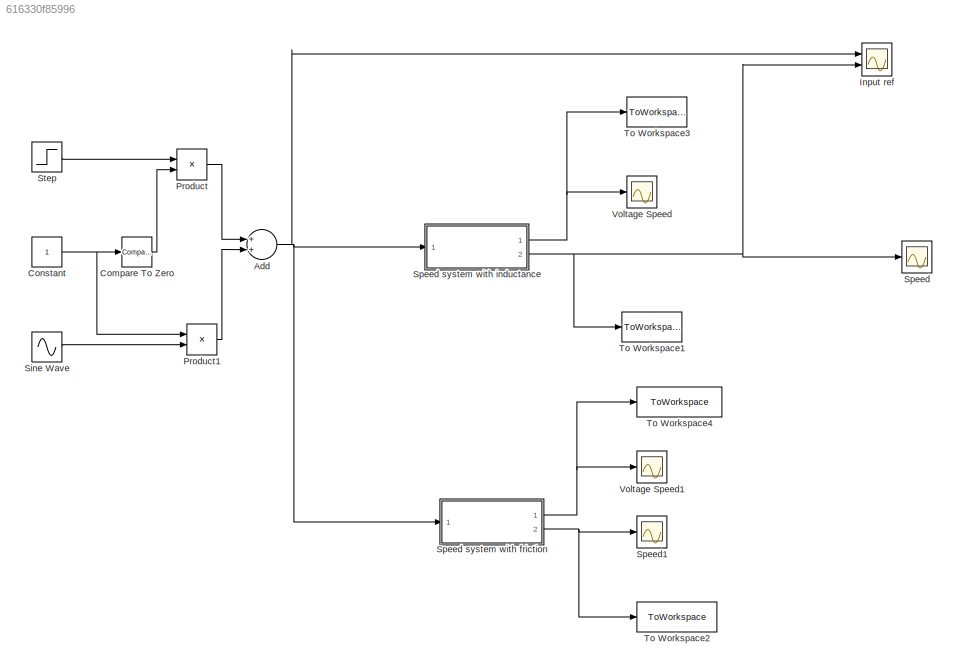
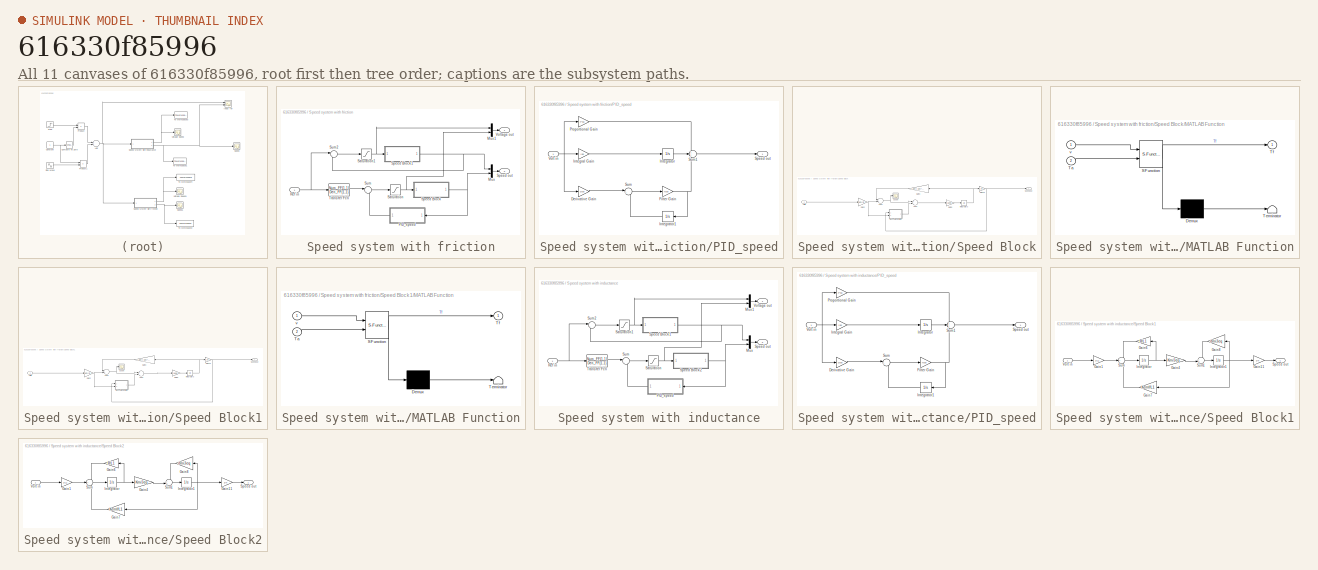
[diagram: thumbnail index - all 11 canvases of the model, root first then tree order]
MODEL slx_616330f85996
KIND model
CONFIG AbsTol = auto
CONFIG FixedStep = auto
CONFIG MaxStep = auto
CONFIG MinStep = auto
CONFIG RelTol = 1e-3
CONFIG SampleTimeConstraint = Unconstrained
CONFIG Solver = ode45
CONFIG SolverMode = SingleTasking
CONFIG SolverName = ode45
CONFIG StartTime = 0.0
CONFIG StopTime = time
BLOCK [Sum] Add
  InputSameDT = off
  OutDataTypeStr = Inherit: Inherit via internal rule
  Ports = [2, 1]
  SaturateOnIntegerOverflow = off
BLOCK [Reference] Compare To Zero  REF=simulink/Logic and Bit
Operations/Compare
To Zero
  Ports = [1, 1]
  SourceBlock = simulink/Logic and Bit\nOperations/Compare\nTo Zero
  SourceType = Compare To Zero
BLOCK [Constant] Constant
BLOCK [Scope] Input ref
  NumInputPorts = 2
  Ports = [2]
  ScopeSpecificationString = Simulink.scopes.TimeScopeBlockCfg('CurrentConfiguration', extmgr.ConfigurationSet(extmgr.Configuration('Core','General UI',true),extmgr.Configuration('Core','Source UI',true),extmgr.Configuration('Sources','WiredSimulink',true,'DataLoggingVariableName','ScopeData6','DataLoggingSaveFormat','StructureWithTime','DataLoggingDecimation','1','DataLoggingDecimateData',true),extmgr.Configuration('Visuals'...<+1787ch>
BLOCK [Product] Product
  InputSameDT = off
  OutDataTypeStr = Inherit: Inherit via internal rule
  Ports = [2, 1]
  RndMeth = Floor
  SaturateOnIntegerOverflow = off
BLOCK [Product] Product1
  InputSameDT = off
  OutDataTypeStr = Inherit: Inherit via internal rule
  Ports = [2, 1]
  RndMeth = Floor
  SaturateOnIntegerOverflow = off
BLOCK [Sin] Sine Wave
  Amplitude = Amplitude
  Frequency = Freq
  Ports = [0, 1]
  SampleTime = 0
BLOCK [Scope] Speed
  Ports = [1]
  ScopeSpecificationString = Simulink.scopes.TimeScopeBlockCfg('CurrentConfiguration', extmgr.ConfigurationSet(extmgr.Configuration('Core','General UI',true),extmgr.Configuration('Core','Source UI',true),extmgr.Configuration('Sources','WiredSimulink',true,'DataLoggingSaveFormat','StructureWithTime','DataLoggingDecimation','1','DataLoggingDecimateData',true),extmgr.Configuration('Visuals','Time Domain',true,'SerializedDisplays...<+1743ch>
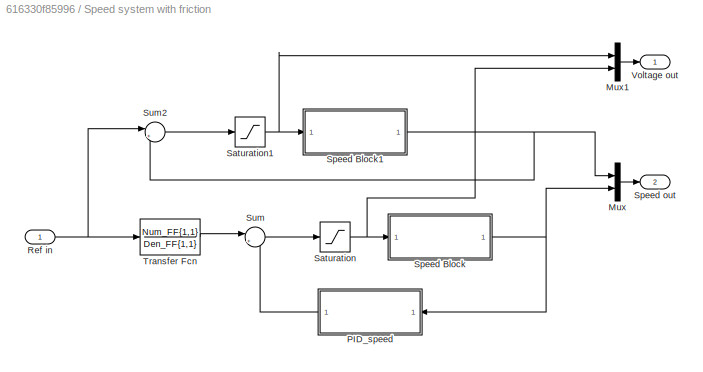
BLOCK [SubSystem] Speed system with friction
  Ports = [1, 2]
  RequestExecContextInheritance = off
  Variant = off
BLOCK [Mux] Speed system with friction/Mux
  DisplayOption = bar
  Inputs = 2
  Ports = [2, 1]
BLOCK [Mux] Speed system with friction/Mux1
  DisplayOption = bar
  Inputs = 2
  Ports = [2, 1]
BLOCK [SubSystem] Speed system with friction/PID_speed
  Ports = [1, 1]
  RequestExecContextInheritance = off
  Variant = off
BLOCK [Gain] Speed system with friction/PID_speed/Derivative Gain
  Gain = Dsp
  OutDataTypeStr = Inherit: Inherit via internal rule
  ParamDataTypeStr = Inherit: Inherit via internal rule
  SaturateOnIntegerOverflow = off
BLOCK [Gain] Speed system with friction/PID_speed/Filter Gain
  Gain = Nsp
  OutDataTypeStr = Inherit: Inherit via internal rule
  ParamDataTypeStr = Inherit: Inherit via internal rule
  SaturateOnIntegerOverflow = off
BLOCK [Gain] Speed system with friction/PID_speed/Integral Gain
  Gain = Isp
  OutDataTypeStr = Inherit: Inherit via internal rule
  ParamDataTypeStr = Inherit: Inherit via internal rule
  SaturateOnIntegerOverflow = off
BLOCK [Integrator] Speed system with friction/PID_speed/Integrator
  Ports = [1, 1]
BLOCK [Integrator] Speed system with friction/PID_speed/Integrator1
  Ports = [1, 1]
BLOCK [Gain] Speed system with friction/PID_speed/Proportional Gain
  Gain = Psp
  OutDataTypeStr = Inherit: Inherit via internal rule
  ParamDataTypeStr = Inherit: Inherit via internal rule
  SaturateOnIntegerOverflow = off
BLOCK [Outport] Speed system with friction/PID_speed/Speed out
  IconDisplay = Port number
BLOCK [Sum] Speed system with friction/PID_speed/Sum
  IconShape = round
  InputSameDT = off
  Inputs = |+-
  OutDataTypeStr = Inherit: Inherit via internal rule
  Ports = [2, 1]
  SaturateOnIntegerOverflow = off
BLOCK [Sum] Speed system with friction/PID_speed/Sum1
  IconShape = round
  InputSameDT = off
  Inputs = +++
  OutDataTypeStr = Inherit: Inherit via internal rule
  Ports = [3, 1]
  SaturateOnIntegerOverflow = off
BLOCK [Inport] Speed system with friction/PID_speed/Volt in
  IconDisplay = Port number
BLOCK [Inport] Speed system with friction/Ref in
  IconDisplay = Port number
BLOCK [Saturate] Speed system with friction/Saturation
  InputPortMap = u0
  LowerLimit = -24
  Ports = [1, 1]
  UpperLimit = 24
BLOCK [Saturate] Speed system with friction/Saturation1
  InputPortMap = u0
  LowerLimit = -24
  Ports = [1, 1]
  UpperLimit = 24
BLOCK [SubSystem] Speed system with friction/Speed Block
  Ports = [1, 1]
  RequestExecContextInheritance = off
  Variant = off
BLOCK [Sum] Speed system with friction/Speed Block/Add2
  InputSameDT = off
  Inputs = -+
  OutDataTypeStr = Inherit: Inherit via internal rule
  Ports = [2, 1]
  SaturateOnIntegerOverflow = off
BLOCK [Sum] Speed system with friction/Speed Block/Add3
  InputSameDT = off
  Inputs = +-
  OutDataTypeStr = Inherit: Inherit via internal rule
  Ports = [2, 1]
  SaturateOnIntegerOverflow = off
BLOCK [Gain] Speed system with friction/Speed Block/Gain10
  Gain = 1/n
  OutDataTypeStr = Inherit: Inherit via internal rule
  ParamDataTypeStr = Inherit: Inherit via internal rule
  SaturateOnIntegerOverflow = off
BLOCK [Gain] Speed system with friction/Speed Block/Gain2
  Gain = Km/R
  OutDataTypeStr = Inherit: Inherit via internal rule
  ParamDataTypeStr = Inherit: Inherit via internal rule
  SaturateOnIntegerOverflow = off
BLOCK [Gain] Speed system with friction/Speed Block/Gain3
  Gain = dm+ Km*Kemf/R
  OutDataTypeStr = Inherit: Inherit via internal rule
  ParamDataTypeStr = Inherit: Inherit via internal rule
  SaturateOnIntegerOverflow = off
BLOCK [Gain] Speed system with friction/Speed Block/Gain5
  Gain = 1/Jeq
  OutDataTypeStr = Inherit: Inherit via internal rule
  ParamDataTypeStr = Inherit: Inherit via internal rule
  SaturateOnIntegerOverflow = off
BLOCK [Integrator] Speed system with friction/Speed Block/Integrator3
  Ports = [1, 1]
BLOCK [SubSystem] Speed system with friction/Speed Block/MATLAB Function
  ErrorFcn = Stateflow.Translate.translate
  PermitHierarchicalResolution = ExplicitOnly
  Ports = [2, 1]
  RequestExecContextInheritance = off
  SFBlockType = MATLAB Function
  TreatAsAtomicUnit = on
  Variant = off
BLOCK [Demux] Speed system with friction/Speed Block/MATLAB Function/ Demux 
  Outputs = 1
  Ports = [1, 1]
BLOCK [S-Function] Speed system with friction/Speed Block/MATLAB Function/ SFunction 
  EnableBusSupport = on
  FunctionName = sf_sfun
  PortCounts = [2 2]
  Ports = [2, 2]
  SFunctionDeploymentMode = off
  Tag = Stateflow S-Function SimLab3_1 1
BLOCK [Terminator] Speed system with friction/Speed Block/MATLAB Function/ Terminator 
BLOCK [Inport] Speed system with friction/Speed Block/MATLAB Function/Ta
  IconDisplay = Port number
  Port = 2
BLOCK [Outport] Speed system with friction/Speed Block/MATLAB Function/Tf
  IconDisplay = Port number
BLOCK [Inport] Speed system with friction/Speed Block/MATLAB Function/v
  IconDisplay = Port number
BLOCK [Scope] Speed system with friction/Speed Block/Scope
  Ports = [1]
  ScopeSpecificationString = C++SS(StrPVP('Location','[680, 330, 1240, 750]'),StrPVP('Open','off'),MxPVP('AxesTitles',24,'struct(''axes1'',''%<SignalLabel>'')'),MxPVP('ScopeGraphics',28,'struct(''FigureColor'',''[0.5 0.5 0.5]'',''AxesColor'',''[0 0 0]'',''AxesTickColor'',''[1 1 1]'',''LineColors'',''[1 1 0;1 0 1;0 1 1;1 0 0;0 1 0;0 0 1]'',''LineStyles'',''-|-|-|-|-|-'',''LineWidths'',''[0.5 0.5 0.5 0.5 0.5 0.5]'',''MarkerStyl...<+293ch>
BLOCK [Outport] Speed system with friction/Speed Block/Speed out
  IconDisplay = Port number
BLOCK [Inport] Speed system with friction/Speed Block/Volt in
  IconDisplay = Port number
BLOCK [SubSystem] Speed system with friction/Speed Block1
  Ports = [1, 1]
  RequestExecContextInheritance = off
  Variant = off
BLOCK [Sum] Speed system with friction/Speed Block1/Add2
  InputSameDT = off
  Inputs = -+
  OutDataTypeStr = Inherit: Inherit via internal rule
  Ports = [2, 1]
  SaturateOnIntegerOverflow = off
BLOCK [Sum] Speed system with friction/Speed Block1/Add3
  InputSameDT = off
  Inputs = +-
  OutDataTypeStr = Inherit: Inherit via internal rule
  Ports = [2, 1]
  SaturateOnIntegerOverflow = off
BLOCK [Gain] Speed system with friction/Speed Block1/Gain10
  Gain = 1/n
  OutDataTypeStr = Inherit: Inherit via internal rule
  ParamDataTypeStr = Inherit: Inherit via internal rule
  SaturateOnIntegerOverflow = off
BLOCK [Gain] Speed system with friction/Speed Block1/Gain2
  Gain = Km/R
  OutDataTypeStr = Inherit: Inherit via internal rule
  ParamDataTypeStr = Inherit: Inherit via internal rule
  SaturateOnIntegerOverflow = off
BLOCK [Gain] Speed system with friction/Speed Block1/Gain3
  Gain = dm+ Km*Kemf/R
  OutDataTypeStr = Inherit: Inherit via internal rule
  ParamDataTypeStr = Inherit: Inherit via internal rule
  SaturateOnIntegerOverflow = off
BLOCK [Gain] Speed system with friction/Speed Block1/Gain5
  Gain = 1/Jeq
  OutDataTypeStr = Inherit: Inherit via internal rule
  ParamDataTypeStr = Inherit: Inherit via internal rule
  SaturateOnIntegerOverflow = off
BLOCK [Integrator] Speed system with friction/Speed Block1/Integrator3
  Ports = [1, 1]
BLOCK [SubSystem] Speed system with friction/Speed Block1/MATLAB Function
  ErrorFcn = Stateflow.Translate.translate
  PermitHierarchicalResolution = ExplicitOnly
  Ports = [2, 1]
  RequestExecContextInheritance = off
  SFBlockType = MATLAB Function
  TreatAsAtomicUnit = on
  Variant = off
BLOCK [Demux] Speed system with friction/Speed Block1/MATLAB Function/ Demux 
  Outputs = 1
  Ports = [1, 1]
BLOCK [S-Function] Speed system with friction/Speed Block1/MATLAB Function/ SFunction 
  EnableBusSupport = on
  FunctionName = sf_sfun
  PortCounts = [2 2]
  Ports = [2, 2]
  SFunctionDeploymentMode = off
  Tag = Stateflow S-Function SimLab3_1 4
BLOCK [Terminator] Speed system with friction/Speed Block1/MATLAB Function/ Terminator 
BLOCK [Inport] Speed system with friction/Speed Block1/MATLAB Function/Ta
  IconDisplay = Port number
  Port = 2
BLOCK [Outport] Speed system with friction/Speed Block1/MATLAB Function/Tf
  IconDisplay = Port number
BLOCK [Inport] Speed system with friction/Speed Block1/MATLAB Function/v
  IconDisplay = Port number
BLOCK [Scope] Speed system with friction/Speed Block1/Scope
  Ports = [1]
  ScopeSpecificationString = C++SS(StrPVP('Location','[680, 330, 1240, 750]'),StrPVP('Open','off'),MxPVP('AxesTitles',24,'struct(''axes1'',''%<SignalLabel>'')'),MxPVP('ScopeGraphics',28,'struct(''FigureColor'',''[0.5 0.5 0.5]'',''AxesColor'',''[0 0 0]'',''AxesTickColor'',''[1 1 1]'',''LineColors'',''[1 1 0;1 0 1;0 1 1;1 0 0;0 1 0;0 0 1]'',''LineStyles'',''-|-|-|-|-|-'',''LineWidths'',''[0.5 0.5 0.5 0.5 0.5 0.5]'',''MarkerStyl...<+293ch>
BLOCK [Outport] Speed system with friction/Speed Block1/Speed out
  IconDisplay = Port number
BLOCK [Inport] Speed system with friction/Speed Block1/Volt in
  IconDisplay = Port number
BLOCK [Outport] Speed system with friction/Speed out
  IconDisplay = Port number
  Port = 2
BLOCK [Sum] Speed system with friction/Sum
  IconShape = round
  InputSameDT = off
  Inputs = |+-
  OutDataTypeStr = Inherit: Inherit via internal rule
  Ports = [2, 1]
  SaturateOnIntegerOverflow = off
BLOCK [Sum] Speed system with friction/Sum2
  IconShape = round
  InputSameDT = off
  Inputs = |+-
  OutDataTypeStr = Inherit: Inherit via internal rule
  Ports = [2, 1]
  SaturateOnIntegerOverflow = off
BLOCK [TransferFcn] Speed system with friction/Transfer Fcn
  Denominator = Den_FF{1,1}
  Numerator = Num_FF{1,1}
BLOCK [Outport] Speed system with friction/Voltage out
  IconDisplay = Port number
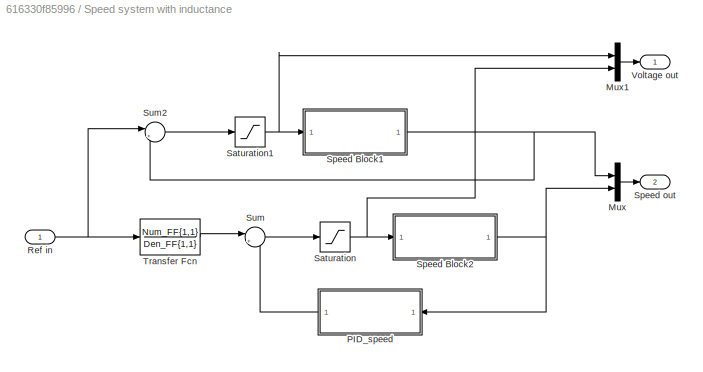
BLOCK [SubSystem] Speed system with inductance
  Ports = [1, 2]
  RequestExecContextInheritance = off
  Variant = off
BLOCK [Mux] Speed system with inductance/Mux
  DisplayOption = bar
  Inputs = 2
  Ports = [2, 1]
BLOCK [Mux] Speed system with inductance/Mux1
  DisplayOption = bar
  Inputs = 2
  Ports = [2, 1]
BLOCK [SubSystem] Speed system with inductance/PID_speed
  Ports = [1, 1]
  RequestExecContextInheritance = off
  Variant = off
BLOCK [Gain] Speed system with inductance/PID_speed/Derivative Gain
  Gain = Dsp
  OutDataTypeStr = Inherit: Inherit via internal rule
  ParamDataTypeStr = Inherit: Inherit via internal rule
  SaturateOnIntegerOverflow = off
BLOCK [Gain] Speed system with inductance/PID_speed/Filter Gain
  Gain = Nsp
  OutDataTypeStr = Inherit: Inherit via internal rule
  ParamDataTypeStr = Inherit: Inherit via internal rule
  SaturateOnIntegerOverflow = off
BLOCK [Gain] Speed system with inductance/PID_speed/Integral Gain
  Gain = Isp
  OutDataTypeStr = Inherit: Inherit via internal rule
  ParamDataTypeStr = Inherit: Inherit via internal rule
  SaturateOnIntegerOverflow = off
BLOCK [Integrator] Speed system with inductance/PID_speed/Integrator
  Ports = [1, 1]
BLOCK [Integrator] Speed system with inductance/PID_speed/Integrator1
  Ports = [1, 1]
BLOCK [Gain] Speed system with inductance/PID_speed/Proportional Gain
  Gain = Psp
  OutDataTypeStr = Inherit: Inherit via internal rule
  ParamDataTypeStr = Inherit: Inherit via internal rule
  SaturateOnIntegerOverflow = off
BLOCK [Outport] Speed system with inductance/PID_speed/Speed out
  IconDisplay = Port number
BLOCK [Sum] Speed system with inductance/PID_speed/Sum
  IconShape = round
  InputSameDT = off
  Inputs = |+-
  OutDataTypeStr = Inherit: Inherit via internal rule
  Ports = [2, 1]
  SaturateOnIntegerOverflow = off
BLOCK [Sum] Speed system with inductance/PID_speed/Sum1
  IconShape = round
  InputSameDT = off
  Inputs = +++
  OutDataTypeStr = Inherit: Inherit via internal rule
  Ports = [3, 1]
  SaturateOnIntegerOverflow = off
BLOCK [Inport] Speed system with inductance/PID_speed/Volt in
  IconDisplay = Port number
BLOCK [Inport] Speed system with inductance/Ref in
  IconDisplay = Port number
BLOCK [Saturate] Speed system with inductance/Saturation
  InputPortMap = u0
  LowerLimit = -24
  Ports = [1, 1]
  UpperLimit = 24
BLOCK [Saturate] Speed system with inductance/Saturation1
  InputPortMap = u0
  LowerLimit = -24
  Ports = [1, 1]
  UpperLimit = 24
BLOCK [SubSystem] Speed system with inductance/Speed Block1
  Ports = [1, 1]
  RequestExecContextInheritance = off
  Variant = off
BLOCK [Gain] Speed system with inductance/Speed Block1/Gain1
  Gain = 1/L1
  OutDataTypeStr = Inherit: Inherit via internal rule
  ParamDataTypeStr = Inherit: Inherit via internal rule
  SaturateOnIntegerOverflow = off
BLOCK [Gain] Speed system with inductance/Speed Block1/Gain11
  Gain = 1/n
  OutDataTypeStr = Inherit: Inherit via internal rule
  ParamDataTypeStr = Inherit: Inherit via internal rule
  SaturateOnIntegerOverflow = off
BLOCK [Gain] Speed system with inductance/Speed Block1/Gain4
  Gain = Km/Jeq
  OutDataTypeStr = Inherit: Inherit via internal rule
  ParamDataTypeStr = Inherit: Inherit via internal rule
  SaturateOnIntegerOverflow = off
BLOCK [Gain] Speed system with inductance/Speed Block1/Gain6
  Gain = R/L1
  OutDataTypeStr = Inherit: Inherit via internal rule
  ParamDataTypeStr = Inherit: Inherit via internal rule
  SaturateOnIntegerOverflow = off
BLOCK [Gain] Speed system with inductance/Speed Block1/Gain7
  Gain = Kemf/L1
  OutDataTypeStr = Inherit: Inherit via internal rule
  ParamDataTypeStr = Inherit: Inherit via internal rule
  SaturateOnIntegerOverflow = off
BLOCK [Gain] Speed system with inductance/Speed Block1/Gain8
  Gain = dm/Jeq
  OutDataTypeStr = Inherit: Inherit via internal rule
  ParamDataTypeStr = Inherit: Inherit via internal rule
  SaturateOnIntegerOverflow = off
BLOCK [Integrator] Speed system with inductance/Speed Block1/Integrator
  Ports = [1, 1]
BLOCK [Integrator] Speed system with inductance/Speed Block1/Integrator1
  Ports = [1, 1]
BLOCK [Outport] Speed system with inductance/Speed Block1/Speed out
  IconDisplay = Port number
BLOCK [Sum] Speed system with inductance/Speed Block1/Sum
  IconShape = round
  InputSameDT = off
  Inputs = -+-
  OutDataTypeStr = Inherit: Inherit via internal rule
  Ports = [3, 1]
  SaturateOnIntegerOverflow = off
BLOCK [Sum] Speed system with inductance/Speed Block1/Sum1
  IconShape = round
  InputSameDT = off
  Inputs = -+|
  OutDataTypeStr = Inherit: Inherit via internal rule
  Ports = [2, 1]
  SaturateOnIntegerOverflow = off
BLOCK [Inport] Speed system with inductance/Speed Block1/Volt in
  IconDisplay = Port number
BLOCK [SubSystem] Speed system with inductance/Speed Block2
  Ports = [1, 1]
  RequestExecContextInheritance = off
  Variant = off
BLOCK [Gain] Speed system with inductance/Speed Block2/Gain1
  Gain = 1/L1
  OutDataTypeStr = Inherit: Inherit via internal rule
  ParamDataTypeStr = Inherit: Inherit via internal rule
  SaturateOnIntegerOverflow = off
BLOCK [Gain] Speed system with inductance/Speed Block2/Gain11
  Gain = 1/n
  OutDataTypeStr = Inherit: Inherit via internal rule
  ParamDataTypeStr = Inherit: Inherit via internal rule
  SaturateOnIntegerOverflow = off
BLOCK [Gain] Speed system with inductance/Speed Block2/Gain4
  Gain = Km/Jeq
  OutDataTypeStr = Inherit: Inherit via internal rule
  ParamDataTypeStr = Inherit: Inherit via internal rule
  SaturateOnIntegerOverflow = off
BLOCK [Gain] Speed system with inductance/Speed Block2/Gain6
  Gain = R/L1
  OutDataTypeStr = Inherit: Inherit via internal rule
  ParamDataTypeStr = Inherit: Inherit via internal rule
  SaturateOnIntegerOverflow = off
BLOCK [Gain] Speed system with inductance/Speed Block2/Gain7
  Gain = Kemf/L1
  OutDataTypeStr = Inherit: Inherit via internal rule
  ParamDataTypeStr = Inherit: Inherit via internal rule
  SaturateOnIntegerOverflow = off
BLOCK [Gain] Speed system with inductance/Speed Block2/Gain8
  Gain = dm/Jeq
  OutDataTypeStr = Inherit: Inherit via internal rule
  ParamDataTypeStr = Inherit: Inherit via internal rule
  SaturateOnIntegerOverflow = off
BLOCK [Integrator] Speed system with inductance/Speed Block2/Integrator
  Ports = [1, 1]
BLOCK [Integrator] Speed system with inductance/Speed Block2/Integrator1
  Ports = [1, 1]
BLOCK [Outport] Speed system with inductance/Speed Block2/Speed out
  IconDisplay = Port number
BLOCK [Sum] Speed system with inductance/Speed Block2/Sum
  IconShape = round
  InputSameDT = off
  Inputs = -+-
  OutDataTypeStr = Inherit: Inherit via internal rule
  Ports = [3, 1]
  SaturateOnIntegerOverflow = off
BLOCK [Sum] Speed system with inductance/Speed Block2/Sum1
  IconShape = round
  InputSameDT = off
  Inputs = -+|
  OutDataTypeStr = Inherit: Inherit via internal rule
  Ports = [2, 1]
  SaturateOnIntegerOverflow = off
BLOCK [Inport] Speed system with inductance/Speed Block2/Volt in
  IconDisplay = Port number
BLOCK [Outport] Speed system with inductance/Speed out
  IconDisplay = Port number
  Port = 2
BLOCK [Sum] Speed system with inductance/Sum
  IconShape = round
  InputSameDT = off
  Inputs = |+-
  OutDataTypeStr = Inherit: Inherit via internal rule
  Ports = [2, 1]
  SaturateOnIntegerOverflow = off
BLOCK [Sum] Speed system with inductance/Sum2
  IconShape = round
  InputSameDT = off
  Inputs = |+-
  OutDataTypeStr = Inherit: Inherit via internal rule
  Ports = [2, 1]
  SaturateOnIntegerOverflow = off
BLOCK [TransferFcn] Speed system with inductance/Transfer Fcn
  Denominator = Den_FF{1,1}
  Numerator = Num_FF{1,1}
BLOCK [Outport] Speed system with inductance/Voltage out
  IconDisplay = Port number
BLOCK [Scope] Speed1
  Ports = [1]
  ScopeSpecificationString = C++SS(StrPVP('Location','[744, 531, 1304, 951]'),StrPVP('Open','off'),MxPVP('AxesTitles',24,'struct(''axes1'',''%<SignalLabel>'')'),MxPVP('ScopeGraphics',28,'struct(''FigureColor'',''[0.5 0.5 0.5]'',''AxesColor'',''[0 0 0]'',''AxesTickColor'',''[1 1 1]'',''LineColors'',''[1 1 0;1 0 1;0 1 1;1 0 0;0 1 0;0 0 1]'',''LineStyles'',''-|-|-|-|-|-'',''LineWidths'',''[0.5 0.5 0.5 0.5 0.5 0.5]'',''MarkerStyl...<+317ch>
BLOCK [Step] Step
  After = Speed_ref_step
  SampleTime = 0
  Time = 0
BLOCK [ToWorkspace] To Workspace1
  FixptAsFi = on
  MaxDataPoints = inf
  Ports = [1]
  SampleTime = -1
  Save2DSignal = 3-D array (concatenate along third dimension)
  SaveFormat = Structure With Time
  VariableName = SpeedOutL
BLOCK [ToWorkspace] To Workspace2
  FixptAsFi = on
  MaxDataPoints = inf
  Ports = [1]
  SampleTime = -1
  Save2DSignal = 3-D array (concatenate along third dimension)
  SaveFormat = Structure With Time
  VariableName = SpeedOutFriction
BLOCK [ToWorkspace] To Workspace3
  FixptAsFi = on
  MaxDataPoints = inf
  Ports = [1]
  SampleTime = -1
  Save2DSignal = 3-D array (concatenate along third dimension)
  SaveFormat = Structure With Time
  VariableName = VoltageOutL
BLOCK [ToWorkspace] To Workspace4
  FixptAsFi = on
  MaxDataPoints = inf
  Ports = [1]
  SampleTime = -1
  Save2DSignal = 3-D array (concatenate along third dimension)
  SaveFormat = Structure With Time
  VariableName = VoltageOutFriction
BLOCK [Scope] Voltage Speed
  Ports = [1]
  ScopeSpecificationString = Simulink.scopes.TimeScopeBlockCfg('CurrentConfiguration', extmgr.ConfigurationSet(extmgr.Configuration('Core','General UI',true),extmgr.Configuration('Core','Source UI',true),extmgr.Configuration('Sources','WiredSimulink',true,'DataLoggingVariableName','ScopeData4','DataLoggingSaveFormat','StructureWithTime','DataLoggingDecimation','1','DataLoggingDecimateData',true),extmgr.Configuration('Visuals'...<+1753ch>
BLOCK [Scope] Voltage Speed1
  Ports = [1]
  ScopeSpecificationString = C++SS(StrPVP('Location','[188, 365, 512, 604]'),StrPVP('Open','off'),MxPVP('AxesTitles',24,'struct(''axes1'',''%<SignalLabel>'')'),StrPVP('ShowLegends','off'),StrPVP('ScrollMode','off'),StrPVP('LimitDataPoints','on'),StrPVP('DataFormat','Array'),StrPVP('Decimation','1'),StrPVP('BlockParamSampleInput','off'))
NET Add:1 -> Input ref:1, Speed system with friction:1, Speed system with inductance:1
LINE Compare To Zero:1 -> Product:2
NET Constant:1 -> Compare To Zero:1, Product1:1
LINE Product1:1 -> Add:2
LINE Product:1 -> Add:1
LINE Sine Wave:1 -> Product1:2
LINE Speed system with friction/Mux1:1 -> Speed system with friction/Voltage out:1
LINE Speed system with friction/Mux:1 -> Speed system with friction/Speed out:1
LINE Speed system with friction/PID_speed/Derivative Gain:1 -> Speed system with friction/PID_speed/Sum:1
NET Speed system with friction/PID_speed/Filter Gain:1 -> Speed system with friction/PID_speed/Integrator1:1, Speed system with friction/PID_speed/Sum1:3
LINE Speed system with friction/PID_speed/Integral Gain:1 -> Speed system with friction/PID_speed/Integrator:1
LINE Speed system with friction/PID_speed/Integrator1:1 -> Speed system with friction/PID_speed/Sum:2
LINE Speed system with friction/PID_speed/Integrator:1 -> Speed system with friction/PID_speed/Sum1:2
LINE Speed system with friction/PID_speed/Proportional Gain:1 -> Speed system with friction/PID_speed/Sum1:1
LINE Speed system with friction/PID_speed/Sum1:1 -> Speed system with friction/PID_speed/Speed out:1
LINE Speed system with friction/PID_speed/Sum:1 -> Speed system with friction/PID_speed/Filter Gain:1
NET Speed system with friction/PID_speed/Volt in:1 -> Speed system with friction/PID_speed/Derivative Gain:1, Speed system with friction/PID_speed/Integral Gain:1, Speed system with friction/PID_speed/Proportional Gain:1
LINE Speed system with friction/PID_speed:1 -> Speed system with friction/Sum:2
NET Speed system with friction/Ref in:1 -> Speed system with friction/Sum2:1, Speed system with friction/Transfer Fcn:1
NET Speed system with friction/Saturation1:1 -> Speed system with friction/Mux1:1, Speed system with friction/Speed Block1:1
NET Speed system with friction/Saturation:1 -> Speed system with friction/Mux1:2, Speed system with friction/Speed Block:1
NET Speed system with friction/Speed Block/Add2:1 -> Speed system with friction/Speed Block/Add3:1, Speed system with friction/Speed Block/Scope:1
LINE Speed system with friction/Speed Block/Add3:1 -> Speed system with friction/Speed Block/Gain5:1
NET Speed system with friction/Speed Block/Gain10:1 -> Speed system with friction/Speed Block/MATLAB Function:1, Speed system with friction/Speed Block/Speed out:1
NET Speed system with friction/Speed Block/Gain2:1 -> Speed system with friction/Speed Block/Add2:2, Speed system with friction/Speed Block/MATLAB Function:2
LINE Speed system with friction/Speed Block/Gain3:1 -> Speed system with friction/Speed Block/Add2:1
LINE Speed system with friction/Speed Block/Gain5:1 -> Speed system with friction/Speed Block/Integrator3:1
NET Speed system with friction/Speed Block/Integrator3:1 -> Speed system with friction/Speed Block/Gain10:1, Speed system with friction/Speed Block/Gain3:1
LINE Speed system with friction/Speed Block/MATLAB Function:1 -> Speed system with friction/Speed Block/Add3:2
LINE Speed system with friction/Speed Block/Volt in:1 -> Speed system with friction/Speed Block/Gain2:1
NET Speed system with friction/Speed Block1/Add2:1 -> Speed system with friction/Speed Block1/Add3:1, Speed system with friction/Speed Block1/Scope:1
LINE Speed system with friction/Speed Block1/Add3:1 -> Speed system with friction/Speed Block1/Gain5:1
NET Speed system with friction/Speed Block1/Gain10:1 -> Speed system with friction/Speed Block1/MATLAB Function:1, Speed system with friction/Speed Block1/Speed out:1
NET Speed system with friction/Speed Block1/Gain2:1 -> Speed system with friction/Speed Block1/Add2:2, Speed system with friction/Speed Block1/MATLAB Function:2
LINE Speed system with friction/Speed Block1/Gain3:1 -> Speed system with friction/Speed Block1/Add2:1
LINE Speed system with friction/Speed Block1/Gain5:1 -> Speed system with friction/Speed Block1/Integrator3:1
NET Speed system with friction/Speed Block1/Integrator3:1 -> Speed system with friction/Speed Block1/Gain10:1, Speed system with friction/Speed Block1/Gain3:1
LINE Speed system with friction/Speed Block1/MATLAB Function:1 -> Speed system with friction/Speed Block1/Add3:2
LINE Speed system with friction/Speed Block1/Volt in:1 -> Speed system with friction/Speed Block1/Gain2:1
NET Speed system with friction/Speed Block1:1 -> Speed system with friction/Mux:1, Speed system with friction/Sum2:2
NET Speed system with friction/Speed Block:1 -> Speed system with friction/Mux:2, Speed system with friction/PID_speed:1
LINE Speed system with friction/Sum2:1 -> Speed system with friction/Saturation1:1
LINE Speed system with friction/Sum:1 -> Speed system with friction/Saturation:1
LINE Speed system with friction/Transfer Fcn:1 -> Speed system with friction/Sum:1
NET Speed system with friction:1 -> To Workspace4:1, Voltage Speed1:1
NET Speed system with friction:2 -> Speed1:1, To Workspace2:1
LINE Speed system with inductance/Mux1:1 -> Speed system with inductance/Voltage out:1
LINE Speed system with inductance/Mux:1 -> Speed system with inductance/Speed out:1
LINE Speed system with inductance/PID_speed/Derivative Gain:1 -> Speed system with inductance/PID_speed/Sum:1
NET Speed system with inductance/PID_speed/Filter Gain:1 -> Speed system with inductance/PID_speed/Integrator1:1, Speed system with inductance/PID_speed/Sum1:3
LINE Speed system with inductance/PID_speed/Integral Gain:1 -> Speed system with inductance/PID_speed/Integrator:1
LINE Speed system with inductance/PID_speed/Integrator1:1 -> Speed system with inductance/PID_speed/Sum:2
LINE Speed system with inductance/PID_speed/Integrator:1 -> Speed system with inductance/PID_speed/Sum1:2
LINE Speed system with inductance/PID_speed/Proportional Gain:1 -> Speed system with inductance/PID_speed/Sum1:1
LINE Speed system with inductance/PID_speed/Sum1:1 -> Speed system with inductance/PID_speed/Speed out:1
LINE Speed system with inductance/PID_speed/Sum:1 -> Speed system with inductance/PID_speed/Filter Gain:1
NET Speed system with inductance/PID_speed/Volt in:1 -> Speed system with inductance/PID_speed/Derivative Gain:1, Speed system with inductance/PID_speed/Integral Gain:1, Speed system with inductance/PID_speed/Proportional Gain:1
LINE Speed system with inductance/PID_speed:1 -> Speed system with inductance/Sum:2
NET Speed system with inductance/Ref in:1 -> Speed system with inductance/Sum2:1, Speed system with inductance/Transfer Fcn:1
NET Speed system with inductance/Saturation1:1 -> Speed system with inductance/Mux1:1, Speed system with inductance/Speed Block1:1
NET Speed system with inductance/Saturation:1 -> Speed system with inductance/Mux1:2, Speed system with inductance/Speed Block2:1
LINE Speed system with inductance/Speed Block1/Gain11:1 -> Speed system with inductance/Speed Block1/Speed out:1
LINE Speed system with inductance/Speed Block1/Gain1:1 -> Speed system with inductance/Speed Block1/Sum:2
LINE Speed system with inductance/Speed Block1/Gain4:1 -> Speed system with inductance/Speed Block1/Sum1:2
LINE Speed system with inductance/Speed Block1/Gain6:1 -> Speed system with inductance/Speed Block1/Sum:1
LINE Speed system with inductance/Speed Block1/Gain7:1 -> Speed system with inductance/Speed Block1/Sum:3
LINE Speed system with inductance/Speed Block1/Gain8:1 -> Speed system with inductance/Speed Block1/Sum1:1
NET Speed system with inductance/Speed Block1/Integrator1:1 -> Speed system with inductance/Speed Block1/Gain11:1, Speed system with inductance/Speed Block1/Gain7:1, Speed system with inductance/Speed Block1/Gain8:1
NET Speed system with inductance/Speed Block1/Integrator:1 -> Speed system with inductance/Speed Block1/Gain4:1, Speed system with inductance/Speed Block1/Gain6:1
LINE Speed system with inductance/Speed Block1/Sum1:1 -> Speed system with inductance/Speed Block1/Integrator1:1
LINE Speed system with inductance/Speed Block1/Sum:1 -> Speed system with inductance/Speed Block1/Integrator:1
LINE Speed system with inductance/Speed Block1/Volt in:1 -> Speed system with inductance/Speed Block1/Gain1:1
NET Speed system with inductance/Speed Block1:1 -> Speed system with inductance/Mux:1, Speed system with inductance/Sum2:2
LINE Speed system with inductance/Speed Block2/Gain11:1 -> Speed system with inductance/Speed Block2/Speed out:1
LINE Speed system with inductance/Speed Block2/Gain1:1 -> Speed system with inductance/Speed Block2/Sum:2
LINE Speed system with inductance/Speed Block2/Gain4:1 -> Speed system with inductance/Speed Block2/Sum1:2
LINE Speed system with inductance/Speed Block2/Gain6:1 -> Speed system with inductance/Speed Block2/Sum:1
LINE Speed system with inductance/Speed Block2/Gain7:1 -> Speed system with inductance/Speed Block2/Sum:3
LINE Speed system with inductance/Speed Block2/Gain8:1 -> Speed system with inductance/Speed Block2/Sum1:1
NET Speed system with inductance/Speed Block2/Integrator1:1 -> Speed system with inductance/Speed Block2/Gain11:1, Speed system with inductance/Speed Block2/Gain7:1, Speed system with inductance/Speed Block2/Gain8:1
NET Speed system with inductance/Speed Block2/Integrator:1 -> Speed system with inductance/Speed Block2/Gain4:1, Speed system with inductance/Speed Block2/Gain6:1
LINE Speed system with inductance/Speed Block2/Sum1:1 -> Speed system with inductance/Speed Block2/Integrator1:1
LINE Speed system with inductance/Speed Block2/Sum:1 -> Speed system with inductance/Speed Block2/Integrator:1
LINE Speed system with inductance/Speed Block2/Volt in:1 -> Speed system with inductance/Speed Block2/Gain1:1
NET Speed system with inductance/Speed Block2:1 -> Speed system with inductance/Mux:2, Speed system with inductance/PID_speed:1
LINE Speed system with inductance/Sum2:1 -> Speed system with inductance/Saturation1:1
LINE Speed system with inductance/Sum:1 -> Speed system with inductance/Saturation:1
LINE Speed system with inductance/Transfer Fcn:1 -> Speed system with inductance/Sum:1
NET Speed system with inductance:1 -> To Workspace3:1, Voltage Speed:1
NET Speed system with inductance:2 -> Input ref:2, Speed:1, To Workspace1:1
LINE Step:1 -> Product:1
note: NET lines group one-source signal fan-out (src -> all destinations, sorted); 1:1 wires keep LINE
CHART Speed system with friction/Speed Block/MATLAB Function states=1 transitions=1
  STATE_LABEL 'eML_blk_kernel()'
  STATE_LABEL 'SCRIPT:\nfunction Tf = fcn(v,Ta)\nTc = 1e-3;\ndv = 1e-1;\nif abs(v) < dv\n    if abs(Ta) > Tc\n        Tf = Tc*sign(Ta);\n    else\n        Tf = Ta;\n    end\nelse\n    Tf = Tc*sign(v);\nend'
CHART Speed system with friction/Speed Block1/MATLAB Function states=1 transitions=1
  STATE_LABEL 'eML_blk_kernel()'
  STATE_LABEL 'SCRIPT:\nfunction Tf = fcn(v,Ta)\nTc = 1e-3;\ndv = 1e-1;\nif abs(v) < dv\n    if abs(Ta) > Tc\n        Tf = Tc*sign(Ta);\n    else\n        Tf = Ta;\n    end\nelse\n    Tf = Tc*sign(v);\nend'
